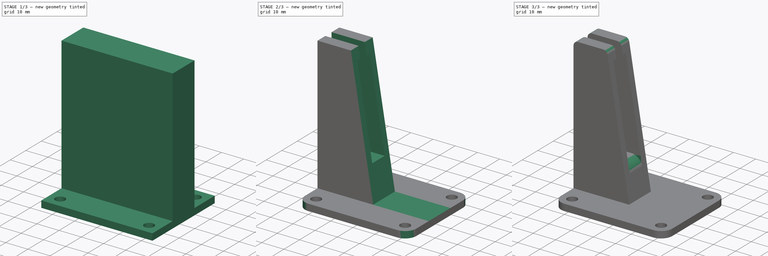
[diagram: build sequence overview — one tinted view per stage of 3, left to right]
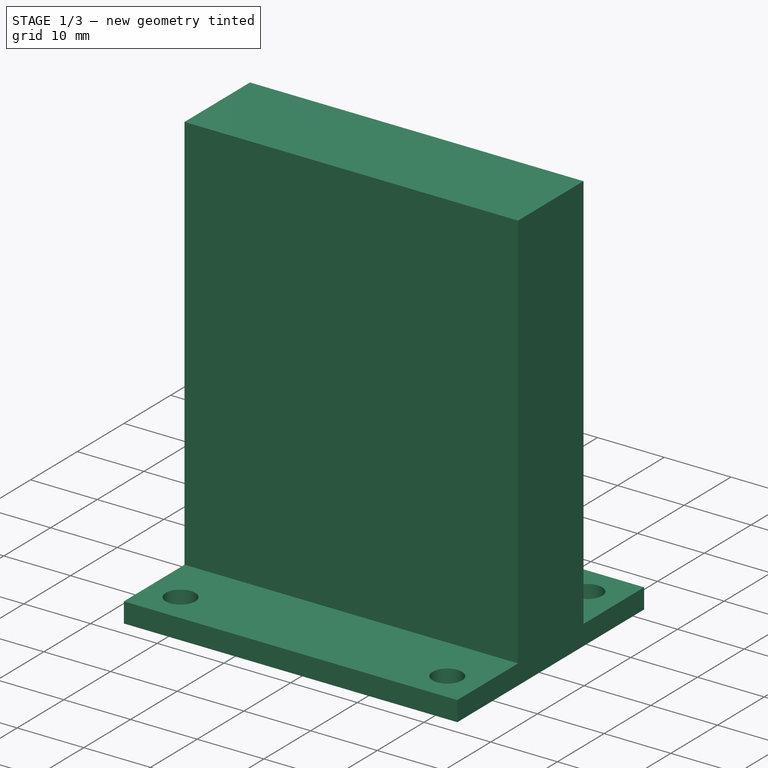
[diagram: stage 1 of 3 — iso view after this stage's code; geometry added in this stage tinted green]
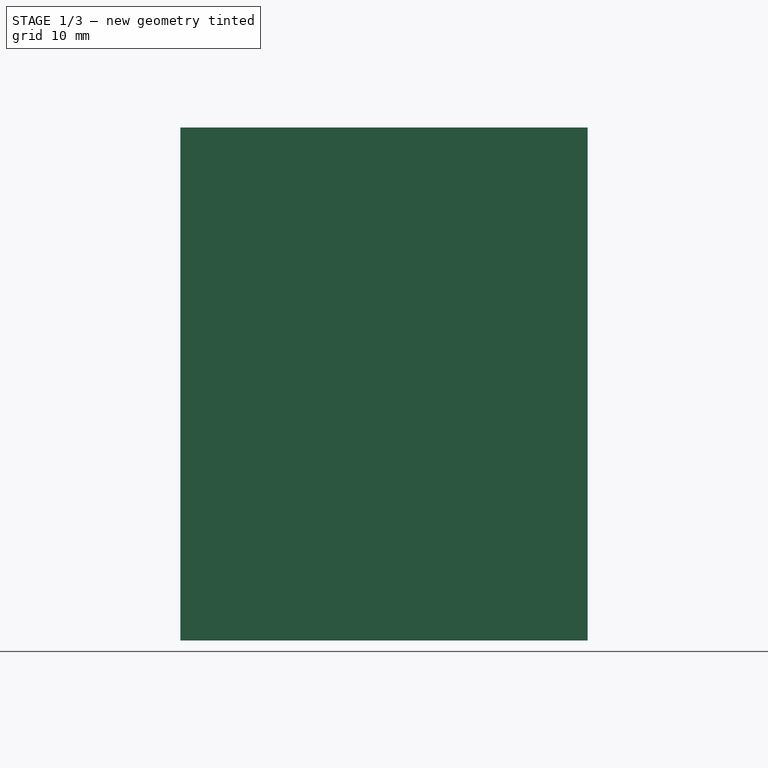
[diagram: stage 1 of 3 — front view after this stage's code; geometry added in this stage tinted green]
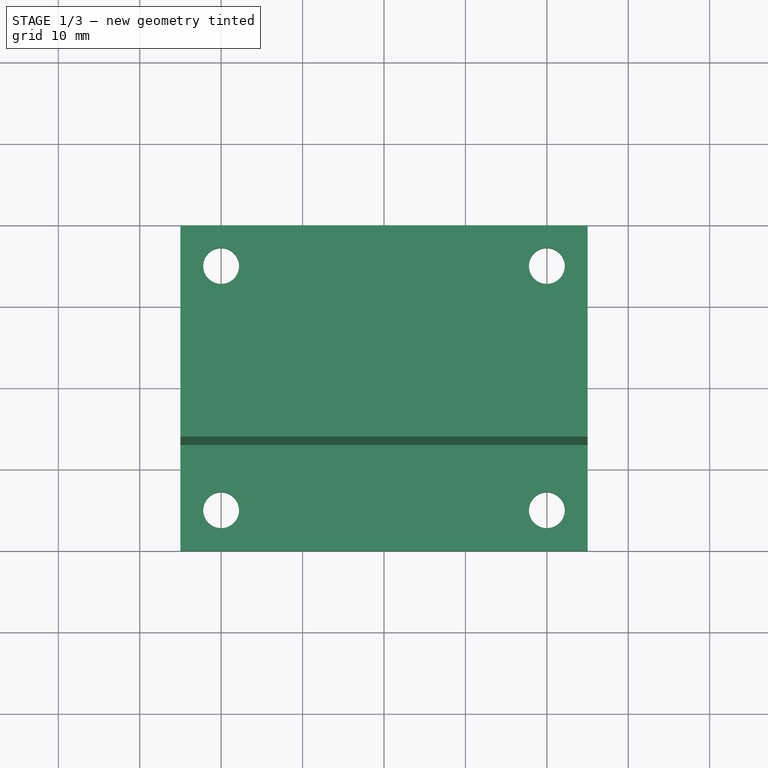
[diagram: stage 1 of 3 — top view after this stage's code; geometry added in this stage tinted green]
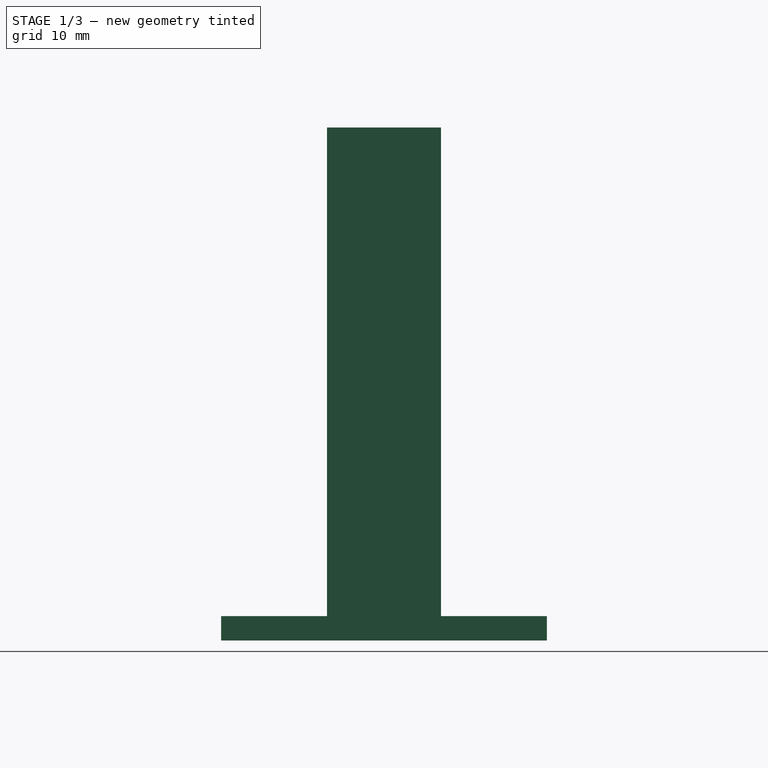
[diagram: stage 1 of 3 — right view after this stage's code; geometry added in this stage tinted green]
FCSTD DOCUMENT  (FreeCAD 0.18.1R)
Label: raczka3
License: All rights reserved
LicenseURL: http://en.wikipedia.org/wiki/All_rights_reserved
objects: Sketcher::SketchObject×4, PartDesign::Fillet×3, PartDesign::Pad×2, PartDesign::Pocket×2, PartDesign::Body×1
note: 16 computed .brp shape members not serialized (recipe doc carries the construction recipe); baked Part::Feature solids carry a one-line shape summary decoded from their .brp

FEATURE [Sketcher::SketchObject] Sketch
  MapMode = 5
  Support = -> [XY_Plane]
  sketch-geometry (12):
    g0: LineSegment StartX=-25 StartY=20 StartZ=0 EndX=25 EndY=20 EndZ=0
    g1: LineSegment StartX=25 StartY=20 StartZ=0 EndX=25 EndY=-20 EndZ=0
    g2: LineSegment StartX=25 StartY=-20 StartZ=0 EndX=-25 EndY=-20 EndZ=0
    g3: LineSegment StartX=-25 StartY=-20 StartZ=0 EndX=-25 EndY=20 EndZ=0
    g4: Circle CenterX=-20 CenterY=-15 CenterZ=0 NormalX=0 NormalY=0 NormalZ=1 AngleXU=0 Radius=2.2
    g5: Circle CenterX=20 CenterY=15 CenterZ=0 NormalX=0 NormalY=0 NormalZ=1 AngleXU=0 Radius=2.2
    g6: Circle CenterX=20 CenterY=-15 CenterZ=0 NormalX=0 NormalY=0 NormalZ=1 AngleXU=0 Radius=2.2
    g7: Circle CenterX=-20 CenterY=15 CenterZ=0 NormalX=0 NormalY=0 NormalZ=1 AngleXU=0 Radius=2.2
    g8: LineSegment [constr] StartX=-20 StartY=15 StartZ=0 EndX=20 EndY=15 EndZ=0
    g9: LineSegment [constr] StartX=20 StartY=15 StartZ=0 EndX=20 EndY=-15 EndZ=0
    g10: LineSegment [constr] StartX=20 StartY=-15 StartZ=0 EndX=-20 EndY=-15 EndZ=0
    g11: LineSegment [constr] StartX=-20 StartY=-15 StartZ=0 EndX=-20 EndY=15 EndZ=0
  constraints (28):
    c: Coincident(g0,g1)
    c: Coincident(g1,g2)
    c: Coincident(g2,g3)
    c: Coincident(g3,g0)
    c: Horizontal(g0)
    c: Vertical(g3)
    c: Equal(g4,g7)
    c: Equal(g7,g5)
    c: Equal(g5,g6)
    c: Coincident(g8,g9)
    c: Coincident(g9,g10)
    c: Coincident(g10,g11)
    c: Coincident(g11,g8)
    c: Horizontal(g8)
    c: Vertical(g9)
    c: Coincident(g8,g7)
    c: Coincident(g9,g6)
    c: Coincident(g5,g8)
    c: Coincident(g4,g10)
    c: Radius(g5) = 2.2
    c: Symmetric(g7,g4,g-1)
    c: Symmetric(g4,g6,g-2)
    c: Symmetric(g1,g2,g-2)
    c: Symmetric(g0,g1,g-1)
    c: DistanceX(g2,g1) = 50
    c: DistanceY(g1,g1) = 40
    c: DistanceY(g7,g0) = 5
    c: DistanceX(g0,g7) = 5
FEATURE [PartDesign::Pad] Pad  label="Podstawka"
  Length = 3
  Length2 = 100
  Profile = -> Sketch
  Type = 0
FEATURE [Sketcher::SketchObject] Sketch001
  ExternalGeometry = -> [Pad]
  MapMode = 5
  Placement = pos=(0,0,3) rot=(0,0,1;0rad)
  Support = -> [Pad]
  sketch-geometry (4):
    g0: LineSegment StartX=-25 StartY=7 StartZ=0 EndX=25 EndY=7 EndZ=0
    g1: LineSegment StartX=25 StartY=-7 StartZ=0 EndX=-25 EndY=-7 EndZ=0
    g2: LineSegment StartX=-25 StartY=7 StartZ=0 EndX=-25 EndY=-7 EndZ=0
    g3: LineSegment StartX=25 StartY=-7 StartZ=0 EndX=25 EndY=7 EndZ=0
  constraints (11):
    c: Horizontal(g0)
    c: PointOnObject(g0,g-3)
    c: Horizontal(g1)
    c: Coincident(g2,g0)
    c: Coincident(g2,g1)
    c: Vertical(g2)
    c: Coincident(g3,g1)
    c: Coincident(g3,g0)
    c: PointOnObject(g0,g-4)
    c: Symmetric(g1,g0,g-1)
    c: DistanceY(g3,g3) = 14
FEATURE [PartDesign::Pad] Pad001  label="Bryła wypustki"
  BaseFeature = -> Pad
  Length = 60
  Length2 = 100
  Profile = -> Sketch001
  Type = 0
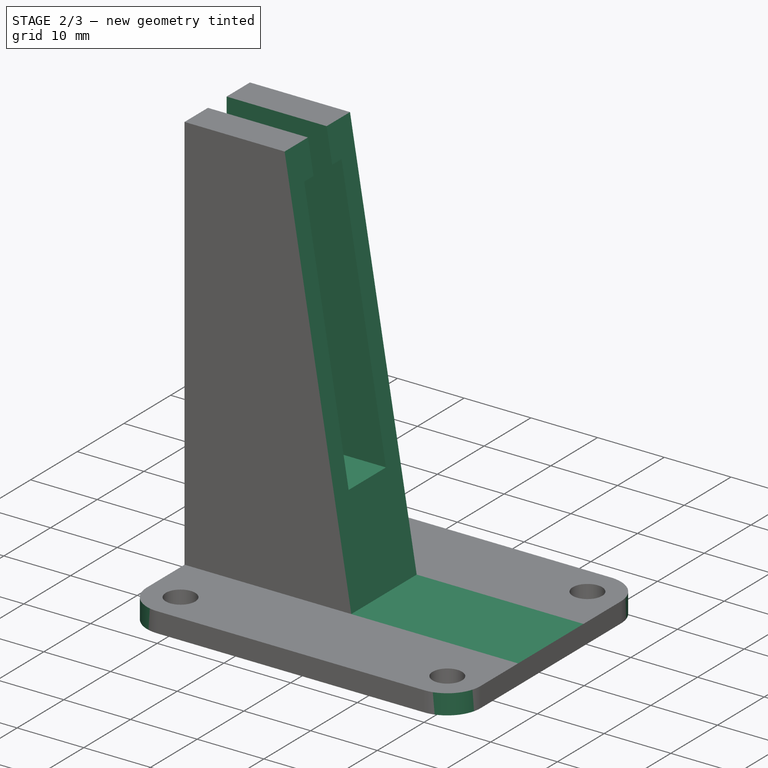
[diagram: stage 2 of 3 — iso view after this stage's code; geometry added in this stage tinted green]
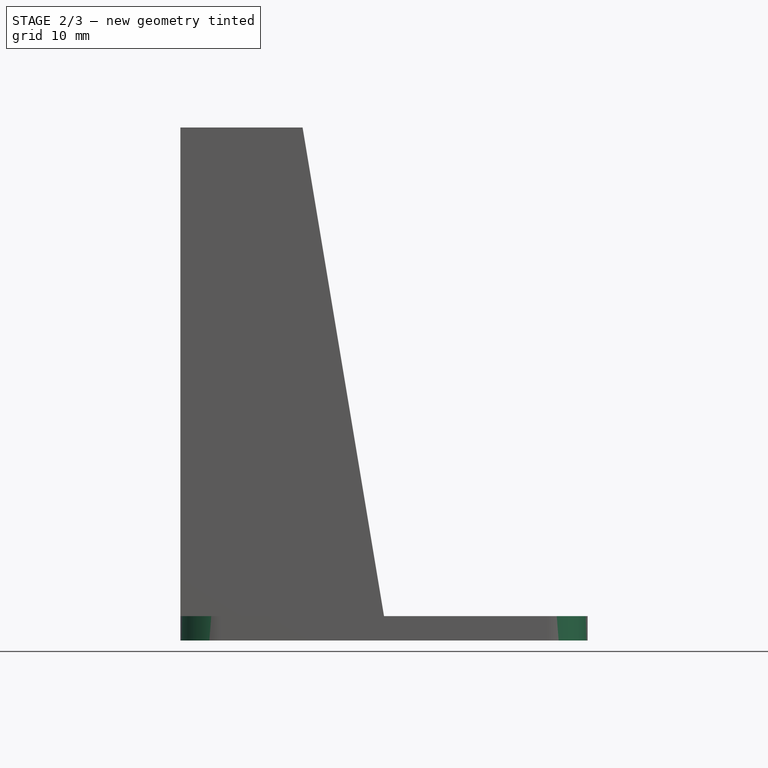
[diagram: stage 2 of 3 — front view after this stage's code; geometry added in this stage tinted green]
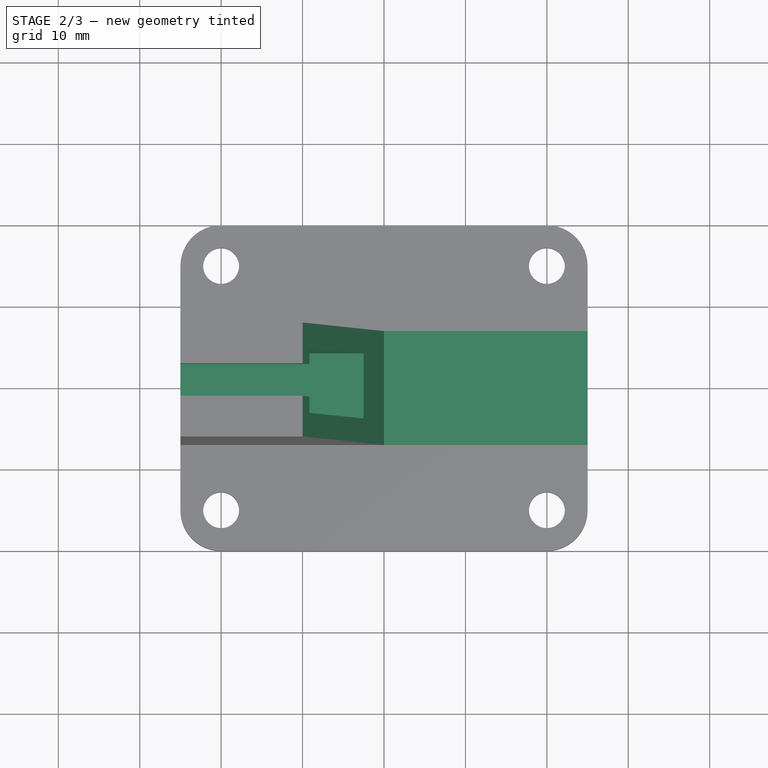
[diagram: stage 2 of 3 — top view after this stage's code; geometry added in this stage tinted green]
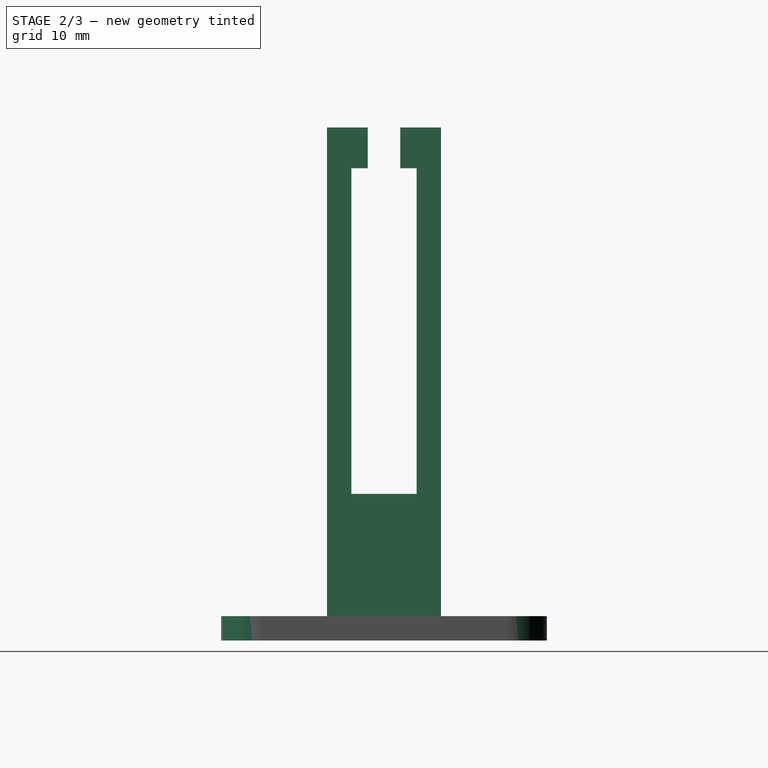
[diagram: stage 2 of 3 — right view after this stage's code; geometry added in this stage tinted green]
FEATURE [Sketcher::SketchObject] Sketch002
  ExternalGeometry = -> [Pad001]
  MapMode = 5
  Placement = pos=(25,0,0) rot=(0.57735,0.57735,0.57735;2.0944rad)
  Support = -> [Pad001]
  sketch-geometry (8):
    g0: LineSegment StartX=-2 StartY=63 StartZ=0 EndX=-2 EndY=58 EndZ=0
    g1: LineSegment StartX=2 StartY=63 StartZ=0 EndX=2 EndY=58 EndZ=0
    g2: LineSegment StartX=-2 StartY=63 StartZ=0 EndX=2 EndY=63 EndZ=0
    g3: LineSegment StartX=2 StartY=58 StartZ=0 EndX=4 EndY=58 EndZ=0
    g4: LineSegment StartX=-2 StartY=58 StartZ=0 EndX=-4 EndY=58 EndZ=0
    g5: LineSegment StartX=-4 StartY=58 StartZ=0 EndX=-4 EndY=18 EndZ=0
    g6: LineSegment StartX=-4 StartY=18 StartZ=0 EndX=4 EndY=18 EndZ=0
    g7: LineSegment StartX=4 StartY=18 StartZ=0 EndX=4 EndY=58 EndZ=0
  constraints (22):
    c: PointOnObject(g0,g-4)
    c: Vertical(g0)
    c: PointOnObject(g1,g-4)
    c: Coincident(g2,g0)
    c: Coincident(g2,g1)
    c: Coincident(g3,g1)
    c: Horizontal(g3)
    c: Coincident(g4,g0)
    c: Vertical(g1)
    c: Symmetric(g0,g1,g-2)
    c: Symmetric(g3,g4,g-2)
    c: DistanceX(g0,g1) = 4
    c: DistanceX(g4,g3) = 8
    c: DistanceY(g1,g1) = 5
    c: Coincident(g5,g4)
    c: Vertical(g5)
    c: Coincident(g6,g5)
    c: Horizontal(g6)
    c: Coincident(g7,g6)
    c: Coincident(g7,g3)
    c: Vertical(g7)
    c: DistanceY(g-6,g6) = 15
FEATURE [PartDesign::Pocket] Pocket  label="Profil uchwytu"
  BaseFeature = -> Pad001
  Length = 5
  Length2 = 100
  Profile = -> Sketch002
  Type = 2
FEATURE [Sketcher::SketchObject] Sketch003
  ExternalGeometry = -> [Pocket]
  MapMode = 5
  Placement = pos=(0,-7,0) rot=(1,0,0;1.5708rad)
  Support = -> [Pocket]
  sketch-geometry (6):
    g0: LineSegment [constr] StartX=-25 StartY=63 StartZ=0 EndX=-10 EndY=63 EndZ=0
    g1: LineSegment [constr] StartX=-25 StartY=3 StartZ=0 EndX=0 EndY=3 EndZ=0
    g2: LineSegment StartX=-10 StartY=63 StartZ=0 EndX=0 EndY=3 EndZ=0
    g3: LineSegment StartX=-10 StartY=63 StartZ=0 EndX=25 EndY=63 EndZ=0
    g4: LineSegment StartX=25 StartY=63 StartZ=0 EndX=25 EndY=3 EndZ=0
    g5: LineSegment StartX=25 StartY=3 StartZ=0 EndX=0 EndY=3 EndZ=0
  constraints (14):
    c: Coincident(g0,g-6)
    c: PointOnObject(g0,g-6)
    c: Coincident(g1,g-4)
    c: PointOnObject(g1,g-3)
    c: Coincident(g2,g0)
    c: Coincident(g2,g1)
    c: Coincident(g3,g2)
    c: Coincident(g3,g-6)
    c: Coincident(g4,g3)
    c: Coincident(g4,g-5)
    c: Coincident(g5,g4)
    c: Coincident(g5,g2)
    c: DistanceX(g0,g0) = 15
    c: DistanceX(g1,g1) = 25
FEATURE [PartDesign::Pocket] Pocket001  label="Kształt uchwytu"
  BaseFeature = -> Pocket
  Length = 0
  Length2 = 100
  Profile = -> Sketch003
  Type = 3
  UpToFace = -> Pocket [Face14]
FEATURE [PartDesign::Fillet] Fillet  label="Zaokraglenia podstawki"
  Base = -> Pocket001 [Edge5,Edge21,Edge4,Edge1]
  BaseFeature = -> Pocket001
  Radius = 5
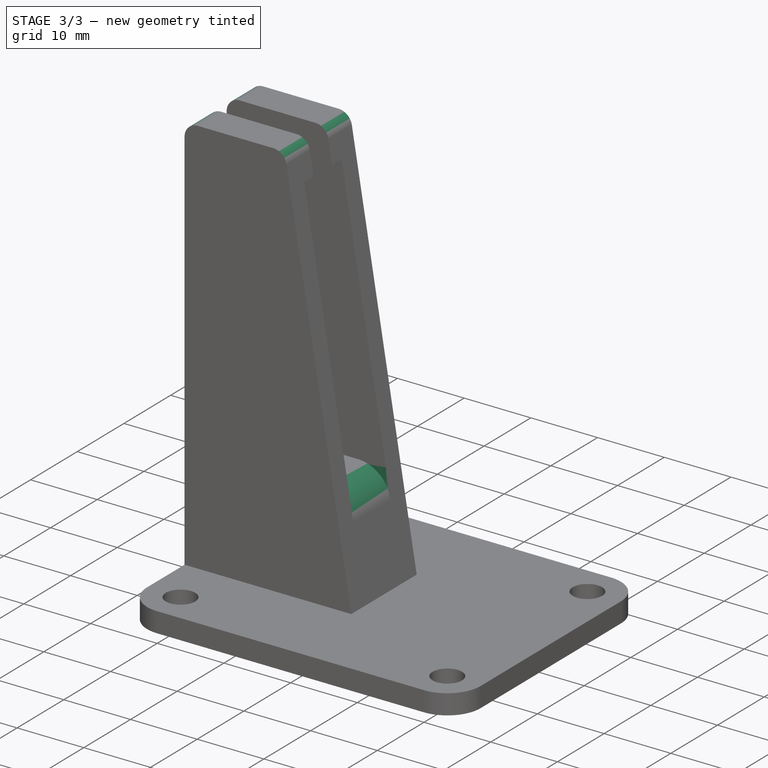
[diagram: stage 3 of 3 — iso view after this stage's code; geometry added in this stage tinted green]
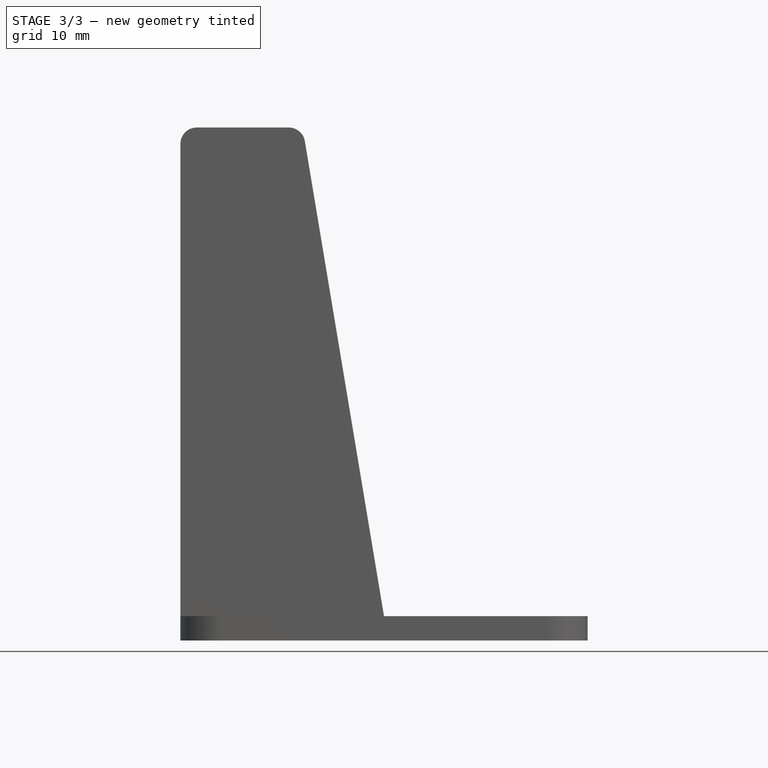
[diagram: stage 3 of 3 — front view after this stage's code; geometry added in this stage tinted green]
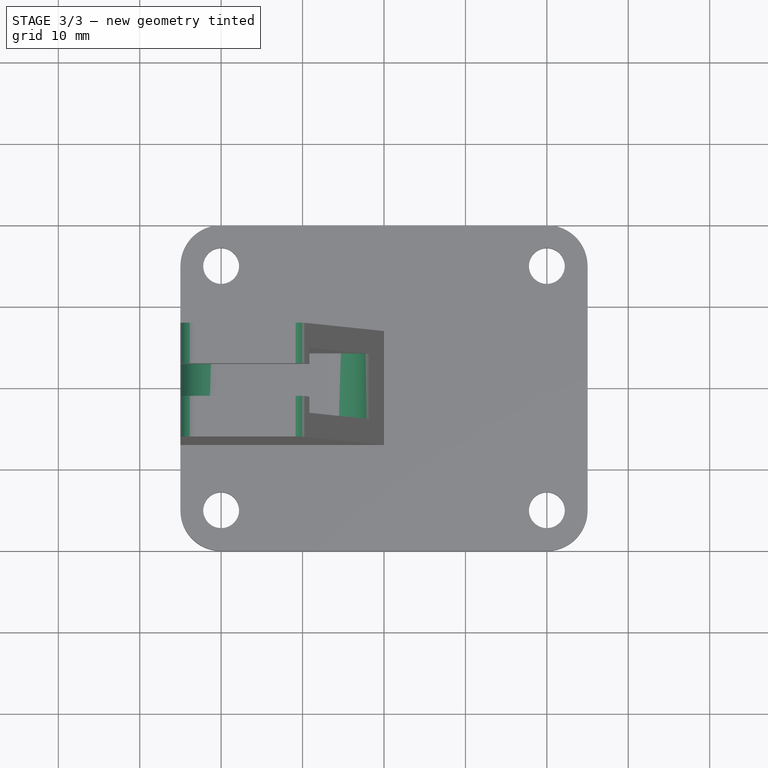
[diagram: stage 3 of 3 — top view after this stage's code; geometry added in this stage tinted green]
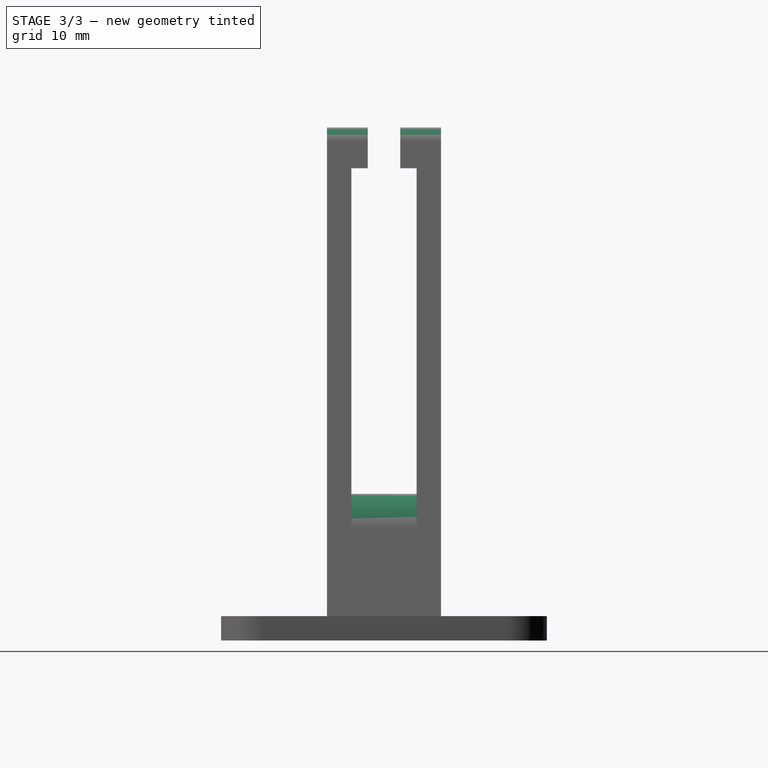
[diagram: stage 3 of 3 — right view after this stage's code; geometry added in this stage tinted green]
FEATURE [PartDesign::Fillet] Fillet001  label="Zaokraglenia koncowki"
  Base = -> Fillet [Edge68,Edge50,Edge60,Edge58]
  BaseFeature = -> Fillet
  Radius = 2
FEATURE [PartDesign::Fillet] Fillet002  label="Sztuka dla sztuki"
  Base = -> Fillet001 [Edge15,Edge38]
  BaseFeature = -> Fillet001
  Radius = 5
FEATURE [PartDesign::Body] Body  label="Uchwyt"
  Group = -> [Sketch,Pad,Sketch001,Pad001,Sketch002,Pocket,Sketch003,Pocket001,Fillet,Fillet001,Fillet002]
  Origin = -> Origin
  Tip = -> Fillet002
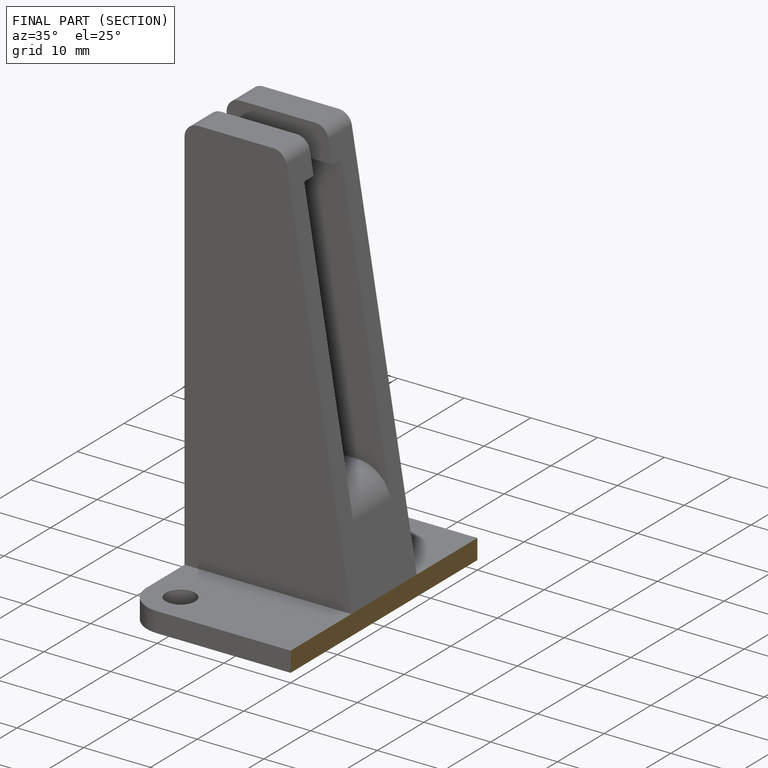
[diagram: finished part — half-section view (interior)]
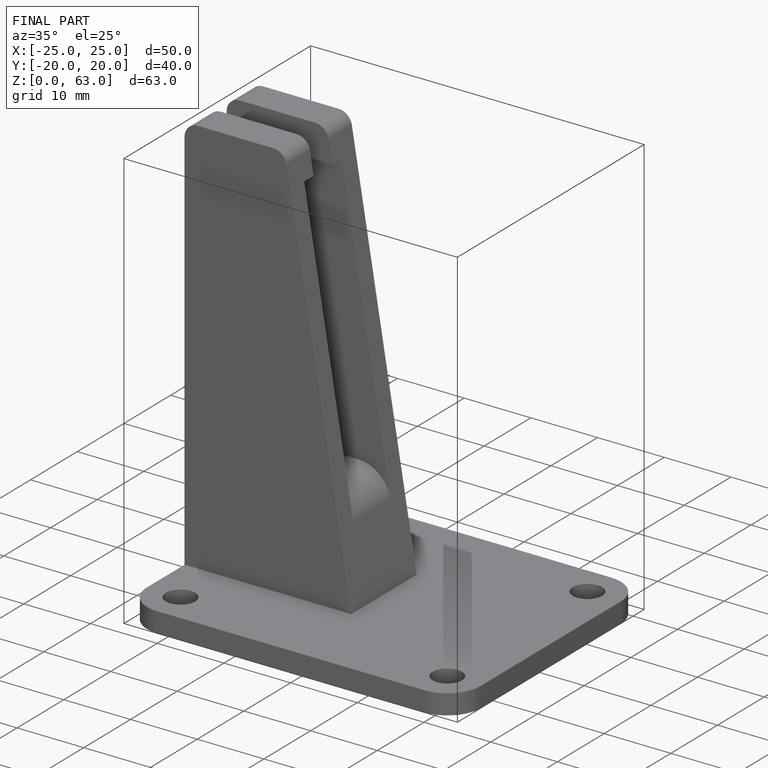
[diagram: finished part — iso view with bounding-box wireframe]
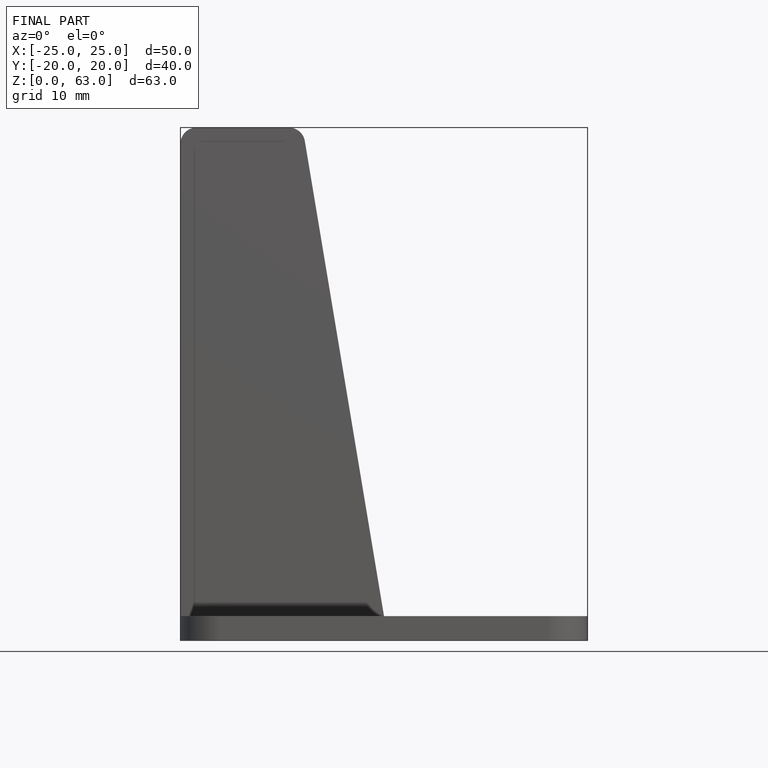
[diagram: finished part — front view with bounding-box wireframe]
